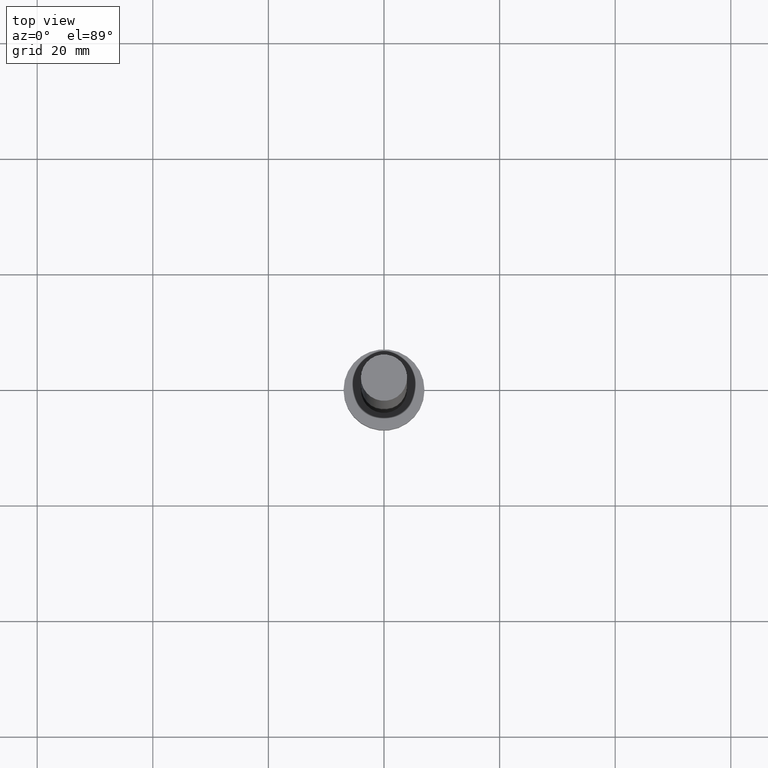
[diagram: clean part render]
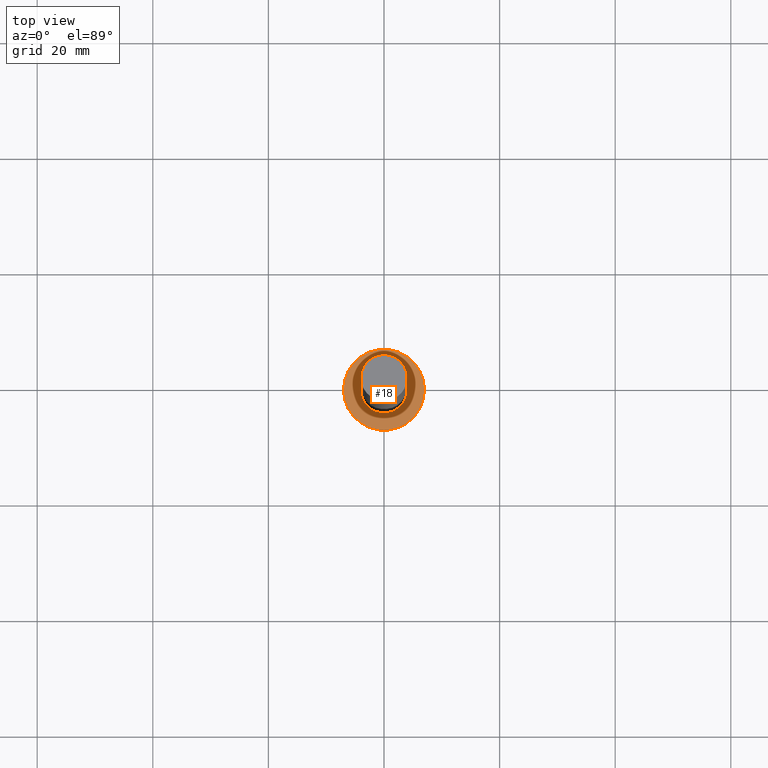
[diagram: same view with one face highlighted and labeled with its STEP entity id]
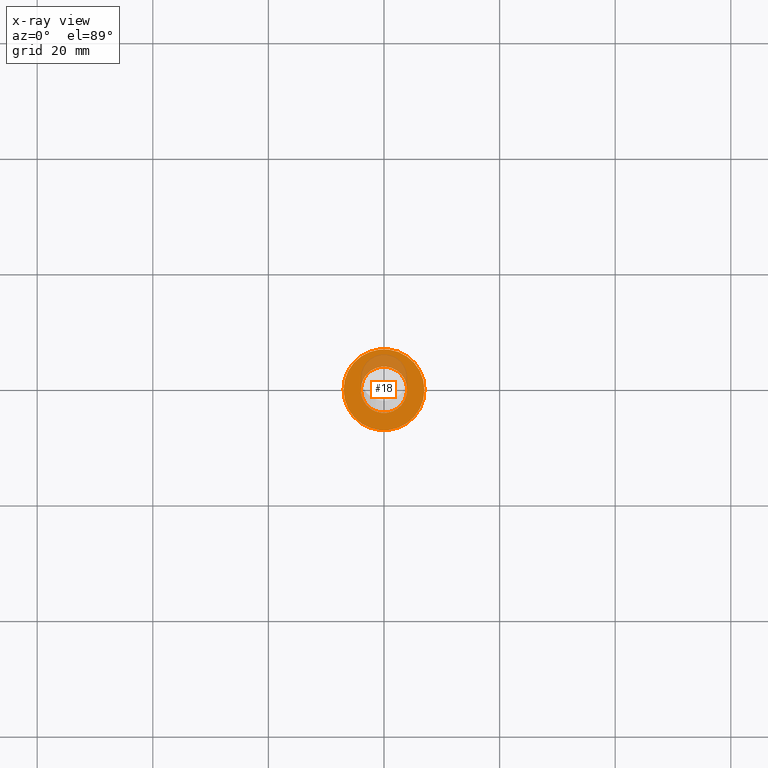
[diagram: x-ray of the same camera — body ghosted, the highlighted face saturated]
A machine part, top view. The second image highlights one B-rep face of the part: STEP entity #18.
The next image is the same camera in x-ray: the body ghosted, the highlighted face saturated — about 16% of this face is hidden behind the body in this view.
In plain terms, the highlighted planar face has unit normal (0, 0, 1).
Its self-contained STEP definition (entity closure, byte-faithful):
#4 = AXIS2_PLACEMENT_3D ( 'NONE', #240, #46, #120 ) ;
#6 = CARTESIAN_POINT ( 'NONE',  ( 0.000000000000000000, 0.000000000000000000, 5.000000000000000000 ) ) ;
#18 = ADVANCED_FACE ( 'NONE', ( #201, #181 ), #145, .T. ) ;
#22 = EDGE_CURVE ( 'NONE', #255, #43, #229, .T. ) ;
#23 = ORIENTED_EDGE ( 'NONE', *, *, #198, .T. ) ;
#24 = CIRCLE ( 'NONE', #47, 7.000000000000000000 ) ;
#28 = DIRECTION ( 'NONE',  ( 0.000000000000000000, 0.000000000000000000, 1.000000000000000000 ) ) ;
#30 = AXIS2_PLACEMENT_3D ( 'NONE', #169, #33, #225 ) ;
#33 = DIRECTION ( 'NONE',  ( 0.000000000000000000, 0.000000000000000000, 1.000000000000000000 ) ) ;
#43 = VERTEX_POINT ( 'NONE', #243 ) ;
#45 = ORIENTED_EDGE ( 'NONE', *, *, #22, .F. ) ;
#46 = DIRECTION ( 'NONE',  ( 0.000000000000000000, 0.000000000000000000, 1.000000000000000000 ) ) ;
#47 = AXIS2_PLACEMENT_3D ( 'NONE', #239, #28, #142 ) ;
#65 = EDGE_CURVE ( 'NONE', #157, #177, #24, .T. ) ;
#67 = CARTESIAN_POINT ( 'NONE',  ( 7.000000000000000000, 8.572527594031473190E-16, 5.000000000000000000 ) ) ;
#78 = AXIS2_PLACEMENT_3D ( 'NONE', #171, #168, #151 ) ;
#102 = EDGE_LOOP ( 'NONE', ( #219, #45 ) ) ;
#103 = DIRECTION ( 'NONE',  ( 1.000000000000000000, 0.000000000000000000, 0.000000000000000000 ) ) ;
#107 = CIRCLE ( 'NONE', #78, 4.000000000000000000 ) ;
#120 = DIRECTION ( 'NONE',  ( 1.000000000000000000, 0.000000000000000000, -0.000000000000000000 ) ) ;
#126 = ORIENTED_EDGE ( 'NONE', *, *, #65, .T. ) ;
#142 = DIRECTION ( 'NONE',  ( 1.000000000000000000, 0.000000000000000000, 0.000000000000000000 ) ) ;
#145 = PLANE ( 'NONE',  #4 ) ;
#147 = CARTESIAN_POINT ( 'NONE',  ( 4.000000000000000000, 4.898587196589412829E-16, 5.000000000000000000 ) ) ;
#151 = DIRECTION ( 'NONE',  ( 1.000000000000000000, 0.000000000000000000, 0.000000000000000000 ) ) ;
#157 = VERTEX_POINT ( 'NONE', #67 ) ;
#165 = DIRECTION ( 'NONE',  ( 0.000000000000000000, 0.000000000000000000, 1.000000000000000000 ) ) ;
#168 = DIRECTION ( 'NONE',  ( 0.000000000000000000, 0.000000000000000000, 1.000000000000000000 ) ) ;
#169 = CARTESIAN_POINT ( 'NONE',  ( 0.000000000000000000, 0.000000000000000000, 5.000000000000000000 ) ) ;
#171 = CARTESIAN_POINT ( 'NONE',  ( 0.000000000000000000, 0.000000000000000000, 5.000000000000000000 ) ) ;
#175 = EDGE_CURVE ( 'NONE', #43, #255, #107, .T. ) ;
#177 = VERTEX_POINT ( 'NONE', #231 ) ;
#181 = FACE_OUTER_BOUND ( 'NONE', #204, .T. ) ;
#198 = EDGE_CURVE ( 'NONE', #177, #157, #251, .T. ) ;
#201 = FACE_BOUND ( 'NONE', #102, .T. ) ;
#203 = AXIS2_PLACEMENT_3D ( 'NONE', #6, #165, #103 ) ;
#204 = EDGE_LOOP ( 'NONE', ( #23, #126 ) ) ;
#219 = ORIENTED_EDGE ( 'NONE', *, *, #175, .F. ) ;
#225 = DIRECTION ( 'NONE',  ( 1.000000000000000000, 0.000000000000000000, 0.000000000000000000 ) ) ;
#229 = CIRCLE ( 'NONE', #203, 4.000000000000000000 ) ;
#231 = CARTESIAN_POINT ( 'NONE',  ( -7.000000000000000000, 0.000000000000000000, 5.000000000000000000 ) ) ;
#239 = CARTESIAN_POINT ( 'NONE',  ( 0.000000000000000000, 0.000000000000000000, 5.000000000000000000 ) ) ;
#240 = CARTESIAN_POINT ( 'NONE',  ( 0.000000000000000000, 0.000000000000000000, 5.000000000000000000 ) ) ;
#243 = CARTESIAN_POINT ( 'NONE',  ( -4.000000000000000000, 0.000000000000000000, 5.000000000000000000 ) ) ;
#251 = CIRCLE ( 'NONE', #30, 7.000000000000000000 ) ;
#255 = VERTEX_POINT ( 'NONE', #147 ) ;